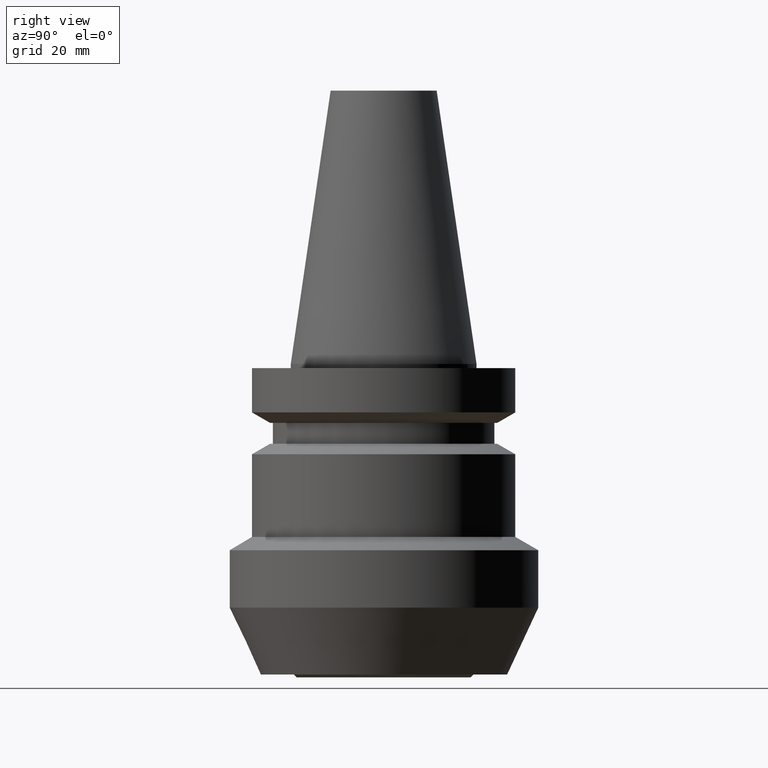
[diagram: clean part render]
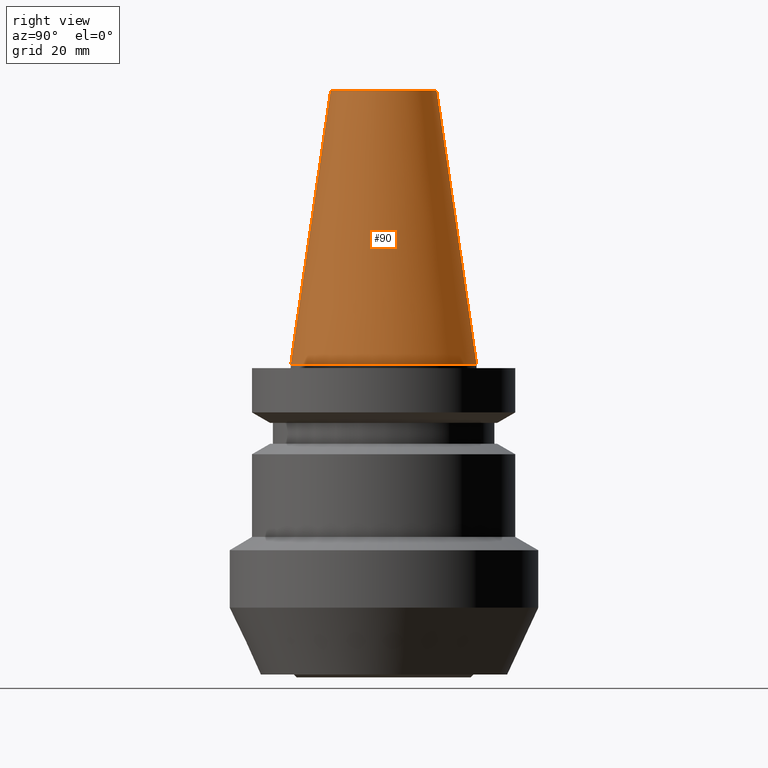
[diagram: same view with one face highlighted and labeled with its STEP entity id]
A machine part, right view. The second image highlights one B-rep face of the part: STEP entity #90.
In plain terms, the highlighted conical surface has half-angle 8.297 deg.
Its self-contained STEP definition (entity closure, byte-faithful):
#90=ADVANCED_FACE('',(#137,#138),#139,.T.);
#137=FACE_BOUND('',#186,.T.);
#138=FACE_BOUND('',#187,.T.);
#139=CONICAL_SURFACE('',#188,17.4562815795972,0.144812498267787);
#186=EDGE_LOOP('',(#265));
#187=EDGE_LOOP('',(#266));
#188=AXIS2_PLACEMENT_3D('',#267,#268,#269);
#265=ORIENTED_EDGE('',*,*,#289,.F.);
#266=ORIENTED_EDGE('',*,*,#288,.T.);
#267=CARTESIAN_POINT('',(-2.00228425659435E-015,-7.43775500859988E-016,32.6997834475772));
#268=DIRECTION('',(6.12323399573677E-017,2.27455787912237E-017,-1.0));
#269=DIRECTION('',(-6.21991774384084E-033,1.0,2.27455787912237E-017));
#288=EDGE_CURVE('',#318,#318,#319,.T.);
#289=EDGE_CURVE('',#320,#320,#321,.T.);
#318=VERTEX_POINT('',#350);
#319=CIRCLE('',#351,22.2249999999989);
#320=VERTEX_POINT('',#352);
#321=CIRCLE('',#353,12.6875631591955);
#350=CARTESIAN_POINT('',(-2.71640381593667E-031,22.2249999999989,2.68410510831374E-015));
#351=AXIS2_PLACEMENT_3D('',#396,#397,#398);
#352=CARTESIAN_POINT('',(-4.0045685131887E-015,12.6875631591955,65.3995668951544));
#353=AXIS2_PLACEMENT_3D('',#399,#400,#401);
#396=CARTESIAN_POINT('',(0.0,0.0,0.0));
#397=DIRECTION('',(-6.12323399573677E-017,-2.27455787910681E-017,1.0));
#398=DIRECTION('',(-6.21991774383714E-033,1.0,2.27455787910681E-017));
#399=CARTESIAN_POINT('',(-4.0045685131887E-015,-1.48755100171998E-015,65.3995668951544));
#400=DIRECTION('',(-6.12323399573677E-017,-2.27455787911142E-017,1.0));
#401=DIRECTION('',(-6.21991774384026E-033,1.0,2.27455787911142E-017));